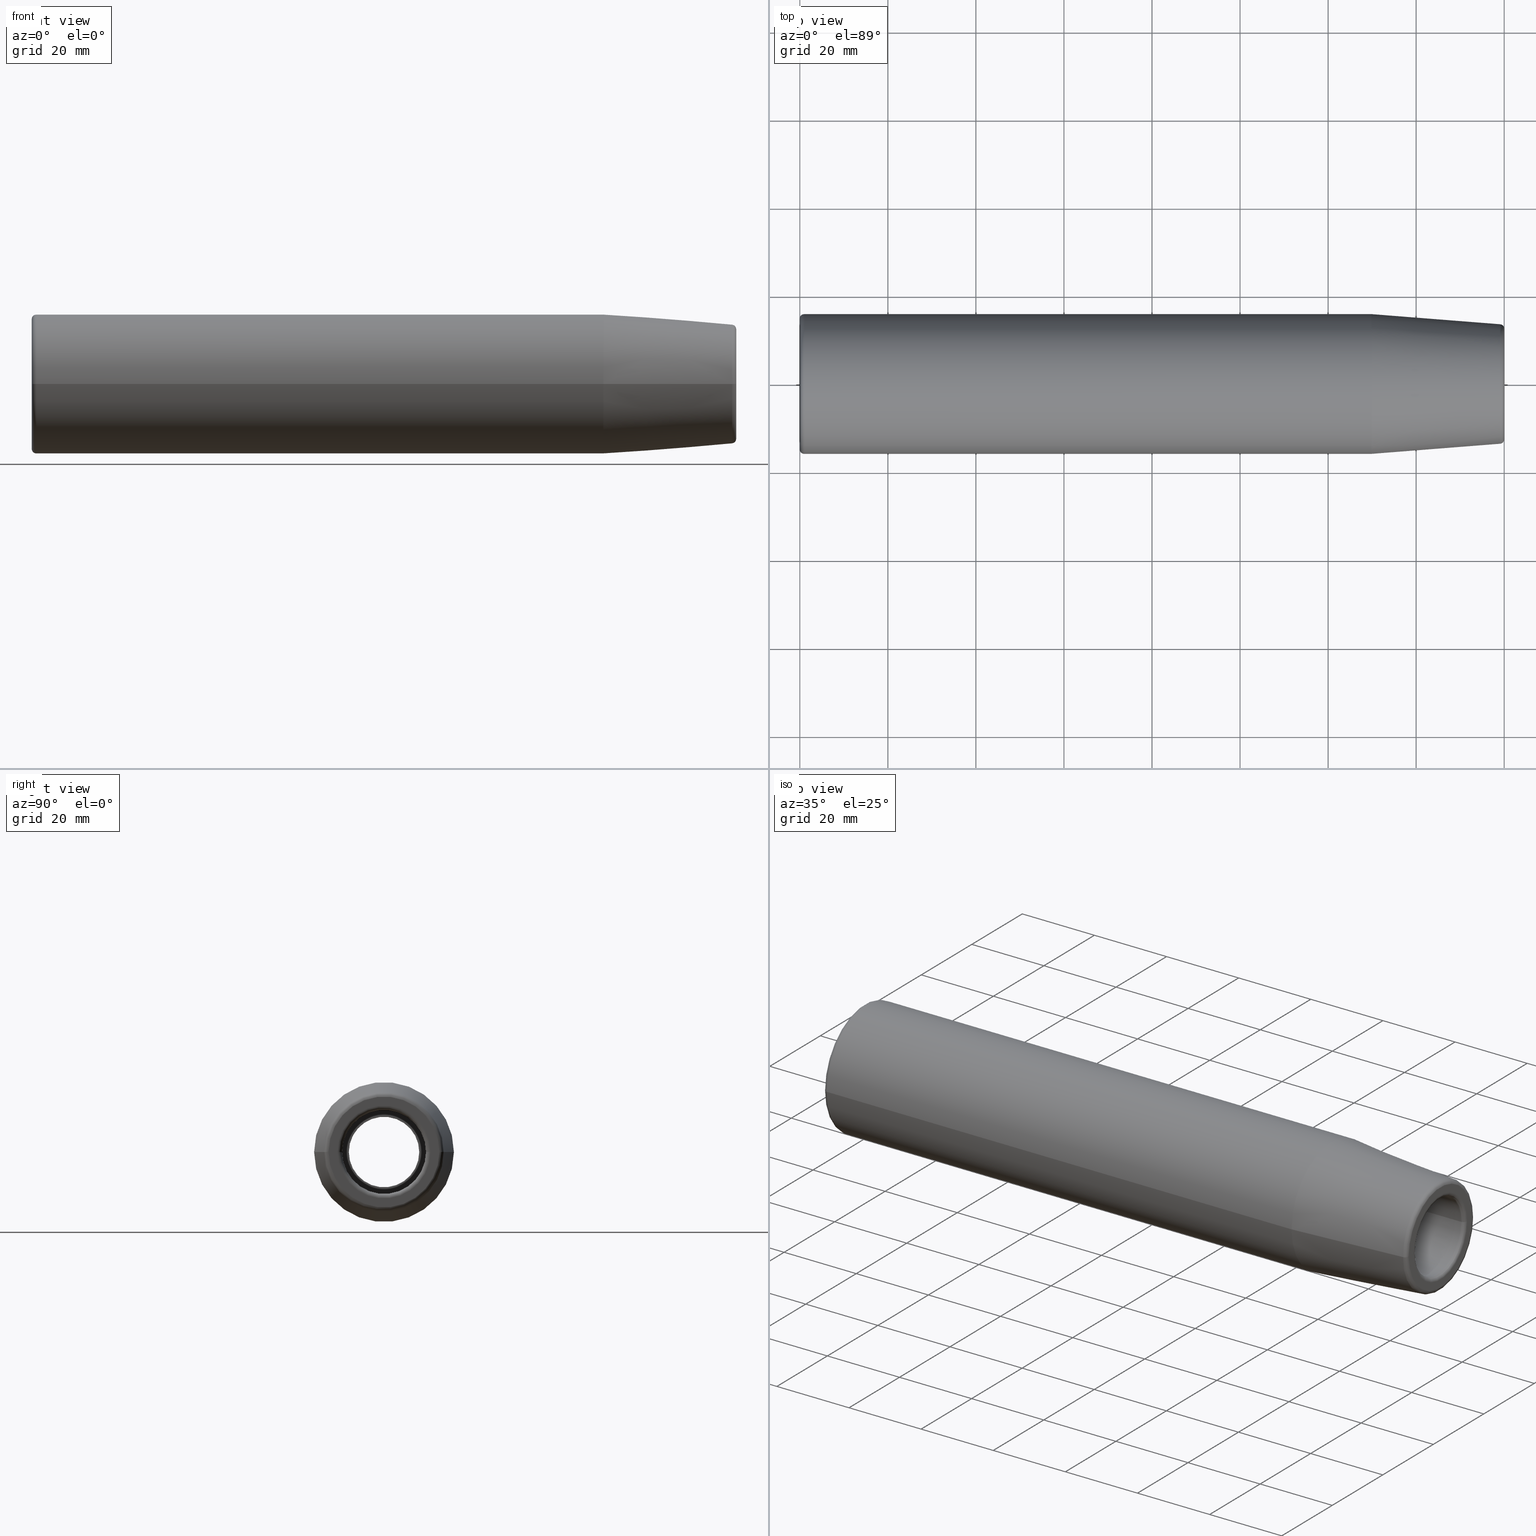
[diagram: canonical four-view strip — front | top / right | iso, engineering-drawing reading convention]
A machine part, canonical four-view strip (front | top / right | iso — engineering-drawing reading convention). The complete STEP part file that produces these views, byte-faithful:
ISO-10303-21;
HEADER;
FILE_DESCRIPTION((''),'2;1');
FILE_NAME('ST31_75-SFH19_05-160','2020-04-27T09:41:28',('eos'),(''),
'CREO PARAMETRIC BY PTC INC, 2018500','CREO PARAMETRIC BY PTC INC, 2018500','');
FILE_SCHEMA(('CONFIG_CONTROL_DESIGN'));
ENDSEC;
DATA;
#2=CARTESIAN_POINT('',(1.E0,0.E0,0.E0));
#3=DIRECTION('',(1.E0,0.E0,0.E0));
#4=DIRECTION('',(0.E0,1.E0,0.E0));
#5=AXIS2_PLACEMENT_3D('',#2,#3,#4);
#7=CARTESIAN_POINT('',(1.E0,1.4875E1,0.E0));
#8=DIRECTION('',(0.E0,0.E0,1.E0));
#9=DIRECTION('',(0.E0,1.E0,0.E0));
#10=AXIS2_PLACEMENT_3D('',#7,#8,#9);
#12=CARTESIAN_POINT('',(1.E0,-1.4875E1,0.E0));
#13=DIRECTION('',(0.E0,0.E0,-1.E0));
#14=DIRECTION('',(0.E0,-1.E0,0.E0));
#15=AXIS2_PLACEMENT_3D('',#12,#13,#14);
#17=CARTESIAN_POINT('',(1.E0,0.E0,0.E0));
#18=DIRECTION('',(-1.E0,0.E0,0.E0));
#19=DIRECTION('',(0.E0,1.E0,0.E0));
#20=AXIS2_PLACEMENT_3D('',#17,#18,#19);
#22=CARTESIAN_POINT('',(0.E0,0.E0,0.E0));
#23=DIRECTION('',(-1.E0,0.E0,0.E0));
#24=DIRECTION('',(0.E0,1.E0,0.E0));
#25=AXIS2_PLACEMENT_3D('',#22,#23,#24);
#27=CARTESIAN_POINT('',(0.E0,0.E0,0.E0));
#28=DIRECTION('',(1.E0,0.E0,0.E0));
#29=DIRECTION('',(0.E0,1.E0,0.E0));
#30=AXIS2_PLACEMENT_3D('',#27,#28,#29);
#32=CARTESIAN_POINT('',(0.E0,0.E0,0.E0));
#33=DIRECTION('',(1.E0,0.E0,0.E0));
#34=DIRECTION('',(0.E0,1.E0,0.E0));
#35=AXIS2_PLACEMENT_3D('',#32,#33,#34);
#37=DIRECTION('',(8.660254037844E-1,-5.000000000002E-1,0.E0));
#38=VECTOR('',#37,1.154700538379E0);
#39=CARTESIAN_POINT('',(0.E0,1.082735026919E1,0.E0));
#40=LINE('',#39,#38);
#41=DIRECTION('',(8.660254037844E-1,5.000000000002E-1,0.E0));
#42=VECTOR('',#41,1.154700538379E0);
#43=CARTESIAN_POINT('',(0.E0,-1.082735026919E1,0.E0));
#44=LINE('',#43,#42);
#45=CARTESIAN_POINT('',(0.E0,0.E0,0.E0));
#46=DIRECTION('',(-1.E0,0.E0,0.E0));
#47=DIRECTION('',(0.E0,1.E0,0.E0));
#48=AXIS2_PLACEMENT_3D('',#45,#46,#47);
#50=DIRECTION('',(1.E0,0.E0,0.E0));
#51=VECTOR('',#50,8.6E1);
#52=CARTESIAN_POINT('',(9.999999999999E-1,1.025E1,0.E0));
#53=LINE('',#52,#51);
#54=DIRECTION('',(1.E0,0.E0,0.E0));
#55=VECTOR('',#54,8.6E1);
#56=CARTESIAN_POINT('',(9.999999999999E-1,-1.025E1,0.E0));
#57=LINE('',#56,#55);
#58=CARTESIAN_POINT('',(9.999999999999E-1,0.E0,0.E0));
#59=DIRECTION('',(-1.E0,0.E0,0.E0));
#60=DIRECTION('',(0.E0,1.E0,0.E0));
#61=AXIS2_PLACEMENT_3D('',#58,#59,#60);
#63=CARTESIAN_POINT('',(9.999999999999E-1,0.E0,0.E0));
#64=DIRECTION('',(1.E0,0.E0,0.E0));
#65=DIRECTION('',(0.E0,1.E0,0.E0));
#66=AXIS2_PLACEMENT_3D('',#63,#64,#65);
#68=CARTESIAN_POINT('',(8.7E1,0.E0,0.E0));
#69=DIRECTION('',(1.E0,0.E0,0.E0));
#70=DIRECTION('',(0.E0,1.E0,0.E0));
#71=AXIS2_PLACEMENT_3D('',#68,#69,#70);
#73=DIRECTION('',(5.000000000005E-1,-8.660254037841E-1,0.E0));
#74=VECTOR('',#73,2.598076211355E0);
#75=CARTESIAN_POINT('',(8.7E1,1.025E1,0.E0));
#76=LINE('',#75,#74);
#77=DIRECTION('',(5.000000000005E-1,8.660254037841E-1,0.E0));
#78=VECTOR('',#77,2.598076211355E0);
#79=CARTESIAN_POINT('',(8.7E1,-1.025E1,0.E0));
#80=LINE('',#79,#78);
#81=CARTESIAN_POINT('',(8.7E1,0.E0,0.E0));
#82=DIRECTION('',(-1.E0,0.E0,0.E0));
#83=DIRECTION('',(0.E0,1.E0,0.E0));
#84=AXIS2_PLACEMENT_3D('',#81,#82,#83);
#86=DIRECTION('',(1.E0,0.E0,0.E0));
#87=VECTOR('',#86,1.865096189432E1);
#88=CARTESIAN_POINT('',(8.829903810568E1,8.E0,0.E0));
#89=LINE('',#88,#87);
#90=DIRECTION('',(1.E0,0.E0,0.E0));
#91=VECTOR('',#90,1.865096189432E1);
#92=CARTESIAN_POINT('',(8.829903810568E1,-8.E0,0.E0));
#93=LINE('',#92,#91);
#94=CARTESIAN_POINT('',(8.829903810568E1,0.E0,0.E0));
#95=DIRECTION('',(-1.E0,0.E0,0.E0));
#96=DIRECTION('',(0.E0,1.E0,0.E0));
#97=AXIS2_PLACEMENT_3D('',#94,#95,#96);
#99=CARTESIAN_POINT('',(8.829903810568E1,0.E0,0.E0));
#100=DIRECTION('',(1.E0,0.E0,0.E0));
#101=DIRECTION('',(0.E0,1.E0,0.E0));
#102=AXIS2_PLACEMENT_3D('',#99,#100,#101);
#104=CARTESIAN_POINT('',(1.0695E2,0.E0,0.E0));
#105=DIRECTION('',(1.E0,0.E0,0.E0));
#106=DIRECTION('',(0.E0,1.E0,0.E0));
#107=AXIS2_PLACEMENT_3D('',#104,#105,#106);
#109=DIRECTION('',(7.071067811873E-1,7.071067811858E-1,0.E0));
#110=VECTOR('',#109,7.071067811858E-2);
#111=CARTESIAN_POINT('',(1.0695E2,8.E0,0.E0));
#112=LINE('',#111,#110);
#113=DIRECTION('',(7.071067811873E-1,-7.071067811858E-1,0.E0));
#114=VECTOR('',#113,7.071067811858E-2);
#115=CARTESIAN_POINT('',(1.0695E2,-8.E0,0.E0));
#116=LINE('',#115,#114);
#117=CARTESIAN_POINT('',(1.0695E2,0.E0,0.E0));
#118=DIRECTION('',(-1.E0,0.E0,0.E0));
#119=DIRECTION('',(0.E0,1.E0,0.E0));
#120=AXIS2_PLACEMENT_3D('',#117,#118,#119);
#122=CARTESIAN_POINT('',(1.07E2,0.E0,0.E0));
#123=DIRECTION('',(-1.E0,0.E0,0.E0));
#124=DIRECTION('',(0.E0,1.E0,0.E0));
#125=AXIS2_PLACEMENT_3D('',#122,#123,#124);
#127=CARTESIAN_POINT('',(1.07E2,0.E0,0.E0));
#128=DIRECTION('',(1.E0,0.E0,0.E0));
#129=DIRECTION('',(0.E0,1.E0,0.E0));
#130=AXIS2_PLACEMENT_3D('',#127,#128,#129);
#132=CARTESIAN_POINT('',(1.07E2,0.E0,0.E0));
#133=DIRECTION('',(1.E0,0.E0,0.E0));
#134=DIRECTION('',(0.E0,1.E0,0.E0));
#135=AXIS2_PLACEMENT_3D('',#132,#133,#134);
#137=DIRECTION('',(1.E0,0.E0,0.E0));
#138=VECTOR('',#137,1.2E1);
#139=CARTESIAN_POINT('',(1.07E2,9.825E0,0.E0));
#140=LINE('',#139,#138);
#141=DIRECTION('',(1.E0,0.E0,0.E0));
#142=VECTOR('',#141,1.2E1);
#143=CARTESIAN_POINT('',(1.07E2,-9.825E0,0.E0));
#144=LINE('',#143,#142);
#145=CARTESIAN_POINT('',(1.07E2,0.E0,0.E0));
#146=DIRECTION('',(-1.E0,0.E0,0.E0));
#147=DIRECTION('',(0.E0,1.E0,0.E0));
#148=AXIS2_PLACEMENT_3D('',#145,#146,#147);
#150=CARTESIAN_POINT('',(1.19E2,0.E0,0.E0));
#151=DIRECTION('',(-1.E0,0.E0,0.E0));
#152=DIRECTION('',(0.E0,1.E0,0.E0));
#153=AXIS2_PLACEMENT_3D('',#150,#151,#152);
#155=CARTESIAN_POINT('',(1.19E2,0.E0,0.E0));
#156=DIRECTION('',(1.E0,0.E0,0.E0));
#157=DIRECTION('',(0.E0,1.E0,0.E0));
#158=AXIS2_PLACEMENT_3D('',#155,#156,#157);
#160=CARTESIAN_POINT('',(1.19E2,0.E0,0.E0));
#161=DIRECTION('',(1.E0,0.E0,0.E0));
#162=DIRECTION('',(0.E0,1.E0,0.E0));
#163=AXIS2_PLACEMENT_3D('',#160,#161,#162);
#165=DIRECTION('',(1.E0,0.E0,0.E0));
#166=VECTOR('',#165,4.E1);
#167=CARTESIAN_POINT('',(1.19E2,9.525E0,0.E0));
#168=LINE('',#167,#166);
#169=DIRECTION('',(1.E0,0.E0,0.E0));
#170=VECTOR('',#169,4.E1);
#171=CARTESIAN_POINT('',(1.19E2,-9.525E0,0.E0));
#172=LINE('',#171,#170);
#173=CARTESIAN_POINT('',(1.19E2,0.E0,0.E0));
#174=DIRECTION('',(-1.E0,0.E0,0.E0));
#175=DIRECTION('',(0.E0,1.E0,0.E0));
#176=AXIS2_PLACEMENT_3D('',#173,#174,#175);
#178=CARTESIAN_POINT('',(1.59E2,1.0525E1,0.E0));
#179=DIRECTION('',(0.E0,0.E0,1.E0));
#180=DIRECTION('',(0.E0,-1.E0,0.E0));
#181=AXIS2_PLACEMENT_3D('',#178,#179,#180);
#183=CARTESIAN_POINT('',(1.59E2,-1.0525E1,0.E0));
#184=DIRECTION('',(0.E0,0.E0,-1.E0));
#185=DIRECTION('',(0.E0,1.E0,0.E0));
#186=AXIS2_PLACEMENT_3D('',#183,#184,#185);
#188=CARTESIAN_POINT('',(1.59E2,0.E0,0.E0));
#189=DIRECTION('',(-1.E0,0.E0,0.E0));
#190=DIRECTION('',(0.E0,1.E0,0.E0));
#191=AXIS2_PLACEMENT_3D('',#188,#189,#190);
#193=CARTESIAN_POINT('',(1.59E2,0.E0,0.E0));
#194=DIRECTION('',(1.E0,0.E0,0.E0));
#195=DIRECTION('',(0.E0,1.E0,0.E0));
#196=AXIS2_PLACEMENT_3D('',#193,#194,#195);
#198=CARTESIAN_POINT('',(1.592588190451E2,0.E0,0.E0));
#199=DIRECTION('',(1.E0,0.E0,0.E0));
#200=DIRECTION('',(0.E0,1.E0,0.E0));
#201=AXIS2_PLACEMENT_3D('',#198,#199,#200);
#203=DIRECTION('',(8.660254037841E-1,5.000000000005E-1,0.E0));
#204=VECTOR('',#203,5.176380902048E-1);
#205=CARTESIAN_POINT('',(1.592588190451E2,9.559074173711E0,0.E0));
#206=LINE('',#205,#204);
#207=DIRECTION('',(8.660254037841E-1,-5.000000000005E-1,0.E0));
#208=VECTOR('',#207,5.176380902048E-1);
#209=CARTESIAN_POINT('',(1.592588190451E2,-9.559074173711E0,0.E0));
#210=LINE('',#209,#208);
#211=CARTESIAN_POINT('',(1.592588190451E2,0.E0,0.E0));
#212=DIRECTION('',(-1.E0,0.E0,0.E0));
#213=DIRECTION('',(0.E0,1.E0,0.E0));
#214=AXIS2_PLACEMENT_3D('',#211,#212,#213);
#216=CARTESIAN_POINT('',(1.59E2,1.0525E1,0.E0));
#217=DIRECTION('',(0.E0,0.E0,1.E0));
#218=DIRECTION('',(7.071067811868E-1,-7.071067811863E-1,0.E0));
#219=AXIS2_PLACEMENT_3D('',#216,#217,#218);
#221=CARTESIAN_POINT('',(1.59E2,-1.0525E1,0.E0));
#222=DIRECTION('',(0.E0,0.E0,-1.E0));
#223=DIRECTION('',(7.071067811868E-1,7.071067811863E-1,0.E0));
#224=AXIS2_PLACEMENT_3D('',#221,#222,#223);
#226=CARTESIAN_POINT('',(1.597071067812E2,0.E0,0.E0));
#227=DIRECTION('',(-1.E0,0.E0,0.E0));
#228=DIRECTION('',(0.E0,1.E0,0.E0));
#229=AXIS2_PLACEMENT_3D('',#226,#227,#228);
#231=CARTESIAN_POINT('',(1.597071067812E2,0.E0,0.E0));
#232=DIRECTION('',(1.E0,0.E0,0.E0));
#233=DIRECTION('',(0.E0,1.E0,0.E0));
#234=AXIS2_PLACEMENT_3D('',#231,#232,#233);
#236=CARTESIAN_POINT('',(1.6E2,0.E0,0.E0));
#237=DIRECTION('',(-1.E0,0.E0,0.E0));
#238=DIRECTION('',(0.E0,1.E0,0.E0));
#239=AXIS2_PLACEMENT_3D('',#236,#237,#238);
#241=CARTESIAN_POINT('',(1.6E2,0.E0,0.E0));
#242=DIRECTION('',(1.E0,0.E0,0.E0));
#243=DIRECTION('',(0.E0,1.E0,0.E0));
#244=AXIS2_PLACEMENT_3D('',#241,#242,#243);
#246=CARTESIAN_POINT('',(1.6E2,0.E0,0.E0));
#247=DIRECTION('',(1.E0,0.E0,0.E0));
#248=DIRECTION('',(0.E0,1.E0,0.E0));
#249=AXIS2_PLACEMENT_3D('',#246,#247,#248);
#251=CARTESIAN_POINT('',(1.59E2,1.257560950834E1,0.E0));
#252=DIRECTION('',(0.E0,0.E0,1.E0));
#253=DIRECTION('',(1.E0,0.E0,0.E0));
#254=AXIS2_PLACEMENT_3D('',#251,#252,#253);
#256=CARTESIAN_POINT('',(1.59E2,-1.257560950834E1,0.E0));
#257=DIRECTION('',(0.E0,0.E0,-1.E0));
#258=DIRECTION('',(1.E0,0.E0,0.E0));
#259=AXIS2_PLACEMENT_3D('',#256,#257,#258);
#261=CARTESIAN_POINT('',(1.6E2,0.E0,0.E0));
#262=DIRECTION('',(-1.E0,0.E0,0.E0));
#263=DIRECTION('',(0.E0,1.E0,0.E0));
#264=AXIS2_PLACEMENT_3D('',#261,#262,#263);
#266=DIRECTION('',(-9.969173337331E-1,7.845909572785E-2,0.E0));
#267=VECTOR('',#266,2.934615976090E1);
#268=CARTESIAN_POINT('',(1.590784590957E2,1.357252684208E1,0.E0));
#269=LINE('',#268,#267);
#270=DIRECTION('',(-9.969173337331E-1,-7.845909572785E-2,0.E0));
#271=VECTOR('',#270,2.934615976090E1);
#272=CARTESIAN_POINT('',(1.590784590957E2,-1.357252684208E1,0.E0));
#273=LINE('',#272,#271);
#274=CARTESIAN_POINT('',(1.590784590957E2,0.E0,0.E0));
#275=DIRECTION('',(-1.E0,0.E0,0.E0));
#276=DIRECTION('',(0.E0,1.E0,0.E0));
#277=AXIS2_PLACEMENT_3D('',#274,#275,#276);
#279=CARTESIAN_POINT('',(1.590784590957E2,0.E0,0.E0));
#280=DIRECTION('',(1.E0,0.E0,0.E0));
#281=DIRECTION('',(0.E0,1.E0,0.E0));
#282=AXIS2_PLACEMENT_3D('',#279,#280,#281);
#284=CARTESIAN_POINT('',(1.298227637516E2,0.E0,0.E0));
#285=DIRECTION('',(1.E0,0.E0,0.E0));
#286=DIRECTION('',(0.E0,1.E0,0.E0));
#287=AXIS2_PLACEMENT_3D('',#284,#285,#286);
#289=DIRECTION('',(-1.E0,0.E0,0.E0));
#290=VECTOR('',#289,1.288227637516E2);
#291=CARTESIAN_POINT('',(1.298227637516E2,1.5875E1,0.E0));
#292=LINE('',#291,#290);
#293=DIRECTION('',(-1.E0,0.E0,0.E0));
#294=VECTOR('',#293,1.288227637516E2);
#295=CARTESIAN_POINT('',(1.298227637516E2,-1.5875E1,0.E0));
#296=LINE('',#295,#294);
#297=CARTESIAN_POINT('',(1.298227637516E2,0.E0,0.E0));
#298=DIRECTION('',(-1.E0,0.E0,0.E0));
#299=DIRECTION('',(0.E0,1.E0,0.E0));
#300=AXIS2_PLACEMENT_3D('',#297,#298,#299);
#302=CARTESIAN_POINT('',(1.E0,1.5875E1,0.E0));
#303=CARTESIAN_POINT('',(0.E0,1.4875E1,0.E0));
#304=VERTEX_POINT('',#302);
#305=VERTEX_POINT('',#303);
#306=CARTESIAN_POINT('',(0.E0,1.082735026919E1,0.E0));
#307=CARTESIAN_POINT('',(9.999999999999E-1,1.025E1,0.E0));
#308=VERTEX_POINT('',#306);
#309=VERTEX_POINT('',#307);
#310=CARTESIAN_POINT('',(8.7E1,1.025E1,0.E0));
#311=VERTEX_POINT('',#310);
#312=CARTESIAN_POINT('',(8.829903810568E1,8.E0,0.E0));
#313=VERTEX_POINT('',#312);
#314=CARTESIAN_POINT('',(1.0695E2,8.E0,0.E0));
#315=VERTEX_POINT('',#314);
#316=CARTESIAN_POINT('',(1.07E2,8.05E0,0.E0));
#317=VERTEX_POINT('',#316);
#318=CARTESIAN_POINT('',(1.07E2,9.825E0,0.E0));
#319=CARTESIAN_POINT('',(1.19E2,9.825E0,0.E0));
#320=VERTEX_POINT('',#318);
#321=VERTEX_POINT('',#319);
#322=CARTESIAN_POINT('',(1.19E2,9.525E0,0.E0));
#323=CARTESIAN_POINT('',(1.59E2,9.525E0,0.E0));
#324=VERTEX_POINT('',#322);
#325=VERTEX_POINT('',#323);
#326=CARTESIAN_POINT('',(1.592588190451E2,9.559074173711E0,0.E0));
#327=VERTEX_POINT('',#326);
#328=CARTESIAN_POINT('',(1.597071067812E2,9.817893218814E0,0.E0));
#329=VERTEX_POINT('',#328);
#330=CARTESIAN_POINT('',(1.6E2,1.0525E1,0.E0));
#331=VERTEX_POINT('',#330);
#332=CARTESIAN_POINT('',(1.6E2,1.257560950834E1,0.E0));
#333=CARTESIAN_POINT('',(1.590784590957E2,1.357252684208E1,0.E0));
#334=VERTEX_POINT('',#332);
#335=VERTEX_POINT('',#333);
#336=CARTESIAN_POINT('',(1.298227637516E2,1.5875E1,0.E0));
#337=VERTEX_POINT('',#336);
#338=CARTESIAN_POINT('',(1.E0,-1.5875E1,0.E0));
#339=CARTESIAN_POINT('',(0.E0,-1.4875E1,0.E0));
#340=VERTEX_POINT('',#338);
#341=VERTEX_POINT('',#339);
#342=CARTESIAN_POINT('',(0.E0,-1.082735026919E1,0.E0));
#343=CARTESIAN_POINT('',(9.999999999999E-1,-1.025E1,0.E0));
#344=VERTEX_POINT('',#342);
#345=VERTEX_POINT('',#343);
#346=CARTESIAN_POINT('',(8.7E1,-1.025E1,0.E0));
#347=VERTEX_POINT('',#346);
#348=CARTESIAN_POINT('',(8.829903810568E1,-8.E0,0.E0));
#349=VERTEX_POINT('',#348);
#350=CARTESIAN_POINT('',(1.0695E2,-8.E0,0.E0));
#351=VERTEX_POINT('',#350);
#352=CARTESIAN_POINT('',(1.07E2,-8.05E0,0.E0));
#353=VERTEX_POINT('',#352);
#354=CARTESIAN_POINT('',(1.07E2,-9.825E0,0.E0));
#355=CARTESIAN_POINT('',(1.19E2,-9.825E0,0.E0));
#356=VERTEX_POINT('',#354);
#357=VERTEX_POINT('',#355);
#358=CARTESIAN_POINT('',(1.19E2,-9.525E0,0.E0));
#359=CARTESIAN_POINT('',(1.59E2,-9.525E0,0.E0));
#360=VERTEX_POINT('',#358);
#361=VERTEX_POINT('',#359);
#362=CARTESIAN_POINT('',(1.592588190451E2,-9.559074173711E0,0.E0));
#363=VERTEX_POINT('',#362);
#364=CARTESIAN_POINT('',(1.597071067812E2,-9.817893218814E0,0.E0));
#365=VERTEX_POINT('',#364);
#366=CARTESIAN_POINT('',(1.6E2,-1.0525E1,0.E0));
#367=VERTEX_POINT('',#366);
#368=CARTESIAN_POINT('',(1.6E2,-1.257560950834E1,0.E0));
#369=CARTESIAN_POINT('',(1.590784590957E2,-1.357252684208E1,0.E0));
#370=VERTEX_POINT('',#368);
#371=VERTEX_POINT('',#369);
#372=CARTESIAN_POINT('',(1.298227637516E2,-1.5875E1,0.E0));
#373=VERTEX_POINT('',#372);
#374=CARTESIAN_POINT('',(1.E0,0.E0,0.E0));
#375=DIRECTION('',(1.E0,0.E0,0.E0));
#376=DIRECTION('',(0.E0,-1.E0,0.E0));
#377=AXIS2_PLACEMENT_3D('',#374,#375,#376);
#378=TOROIDAL_SURFACE('',#377,1.4875E1,1.E0);
#380=ORIENTED_EDGE('',*,*,#379,.F.);
#382=ORIENTED_EDGE('',*,*,#381,.T.);
#384=ORIENTED_EDGE('',*,*,#383,.T.);
#386=ORIENTED_EDGE('',*,*,#385,.F.);
#387=EDGE_LOOP('',(#380,#382,#384,#386));
#388=FACE_OUTER_BOUND('',#387,.F.);
#389=ADVANCED_FACE('',(#388),#378,.T.);
#390=CARTESIAN_POINT('',(1.E0,0.E0,0.E0));
#391=DIRECTION('',(1.E0,0.E0,0.E0));
#392=DIRECTION('',(0.E0,-1.E0,0.E0));
#393=AXIS2_PLACEMENT_3D('',#390,#391,#392);
#394=TOROIDAL_SURFACE('',#393,1.4875E1,1.E0);
#395=ORIENTED_EDGE('',*,*,#379,.T.);
#397=ORIENTED_EDGE('',*,*,#396,.T.);
#398=ORIENTED_EDGE('',*,*,#383,.F.);
#400=ORIENTED_EDGE('',*,*,#399,.F.);
#401=EDGE_LOOP('',(#395,#397,#398,#400));
#402=FACE_OUTER_BOUND('',#401,.F.);
#403=ADVANCED_FACE('',(#402),#394,.T.);
#404=CARTESIAN_POINT('',(0.E0,0.E0,0.E0));
#405=DIRECTION('',(1.E0,0.E0,0.E0));
#406=DIRECTION('',(0.E0,-1.E0,0.E0));
#407=AXIS2_PLACEMENT_3D('',#404,#405,#406);
#408=PLANE('',#407);
#409=ORIENTED_EDGE('',*,*,#396,.F.);
#410=ORIENTED_EDGE('',*,*,#385,.T.);
#411=EDGE_LOOP('',(#409,#410));
#412=FACE_OUTER_BOUND('',#411,.F.);
#414=ORIENTED_EDGE('',*,*,#413,.F.);
#416=ORIENTED_EDGE('',*,*,#415,.T.);
#417=EDGE_LOOP('',(#414,#416));
#418=FACE_BOUND('',#417,.F.);
#419=ADVANCED_FACE('',(#412,#418),#408,.F.);
#420=CARTESIAN_POINT('',(4.999999999999E-1,0.E0,0.E0));
#421=DIRECTION('',(-1.E0,0.E0,0.E0));
#422=DIRECTION('',(0.E0,1.E0,0.E0));
#423=AXIS2_PLACEMENT_3D('',#420,#421,#422);
#424=CONICAL_SURFACE('',#423,1.053867513460E1,3.000000000001E1);
#426=ORIENTED_EDGE('',*,*,#425,.F.);
#427=ORIENTED_EDGE('',*,*,#413,.T.);
#429=ORIENTED_EDGE('',*,*,#428,.T.);
#431=ORIENTED_EDGE('',*,*,#430,.F.);
#432=EDGE_LOOP('',(#426,#427,#429,#431));
#433=FACE_OUTER_BOUND('',#432,.F.);
#434=ADVANCED_FACE('',(#433),#424,.F.);
#435=CARTESIAN_POINT('',(4.999999999999E-1,0.E0,0.E0));
#436=DIRECTION('',(-1.E0,0.E0,0.E0));
#437=DIRECTION('',(0.E0,1.E0,0.E0));
#438=AXIS2_PLACEMENT_3D('',#435,#436,#437);
#439=CONICAL_SURFACE('',#438,1.053867513460E1,3.000000000001E1);
#440=ORIENTED_EDGE('',*,*,#425,.T.);
#442=ORIENTED_EDGE('',*,*,#441,.T.);
#443=ORIENTED_EDGE('',*,*,#428,.F.);
#444=ORIENTED_EDGE('',*,*,#415,.F.);
#445=EDGE_LOOP('',(#440,#442,#443,#444));
#446=FACE_OUTER_BOUND('',#445,.F.);
#447=ADVANCED_FACE('',(#446),#439,.F.);
#448=CARTESIAN_POINT('',(-8.E0,0.E0,0.E0));
#449=DIRECTION('',(1.E0,0.E0,0.E0));
#450=DIRECTION('',(0.E0,-1.E0,0.E0));
#451=AXIS2_PLACEMENT_3D('',#448,#449,#450);
#452=CYLINDRICAL_SURFACE('',#451,1.025E1);
#454=ORIENTED_EDGE('',*,*,#453,.T.);
#456=ORIENTED_EDGE('',*,*,#455,.T.);
#458=ORIENTED_EDGE('',*,*,#457,.F.);
#459=ORIENTED_EDGE('',*,*,#441,.F.);
#460=EDGE_LOOP('',(#454,#456,#458,#459));
#461=FACE_OUTER_BOUND('',#460,.F.);
#462=ADVANCED_FACE('',(#461),#452,.F.);
#463=CARTESIAN_POINT('',(-8.E0,0.E0,0.E0));
#464=DIRECTION('',(1.E0,0.E0,0.E0));
#465=DIRECTION('',(0.E0,-1.E0,0.E0));
#466=AXIS2_PLACEMENT_3D('',#463,#464,#465);
#467=CYLINDRICAL_SURFACE('',#466,1.025E1);
#468=ORIENTED_EDGE('',*,*,#453,.F.);
#469=ORIENTED_EDGE('',*,*,#430,.T.);
#470=ORIENTED_EDGE('',*,*,#457,.T.);
#472=ORIENTED_EDGE('',*,*,#471,.F.);
#473=EDGE_LOOP('',(#468,#469,#470,#472));
#474=FACE_OUTER_BOUND('',#473,.F.);
#475=ADVANCED_FACE('',(#474),#467,.F.);
#476=CARTESIAN_POINT('',(8.764951905284E1,0.E0,0.E0));
#477=DIRECTION('',(-1.E0,0.E0,0.E0));
#478=DIRECTION('',(0.E0,1.E0,0.E0));
#479=AXIS2_PLACEMENT_3D('',#476,#477,#478);
#480=CONICAL_SURFACE('',#479,9.125E0,5.999999999997E1);
#482=ORIENTED_EDGE('',*,*,#481,.F.);
#483=ORIENTED_EDGE('',*,*,#471,.T.);
#485=ORIENTED_EDGE('',*,*,#484,.T.);
#487=ORIENTED_EDGE('',*,*,#486,.F.);
#488=EDGE_LOOP('',(#482,#483,#485,#487));
#489=FACE_OUTER_BOUND('',#488,.F.);
#490=ADVANCED_FACE('',(#489),#480,.F.);
#491=CARTESIAN_POINT('',(8.764951905284E1,0.E0,0.E0));
#492=DIRECTION('',(-1.E0,0.E0,0.E0));
#493=DIRECTION('',(0.E0,1.E0,0.E0));
#494=AXIS2_PLACEMENT_3D('',#491,#492,#493);
#495=CONICAL_SURFACE('',#494,9.125E0,5.999999999997E1);
#496=ORIENTED_EDGE('',*,*,#481,.T.);
#498=ORIENTED_EDGE('',*,*,#497,.T.);
#499=ORIENTED_EDGE('',*,*,#484,.F.);
#500=ORIENTED_EDGE('',*,*,#455,.F.);
#501=EDGE_LOOP('',(#496,#498,#499,#500));
#502=FACE_OUTER_BOUND('',#501,.F.);
#503=ADVANCED_FACE('',(#502),#495,.F.);
#504=CARTESIAN_POINT('',(-8.E0,0.E0,0.E0));
#505=DIRECTION('',(1.E0,0.E0,0.E0));
#506=DIRECTION('',(0.E0,-1.E0,0.E0));
#507=AXIS2_PLACEMENT_3D('',#504,#505,#506);
#508=CYLINDRICAL_SURFACE('',#507,8.E0);
#510=ORIENTED_EDGE('',*,*,#509,.T.);
#512=ORIENTED_EDGE('',*,*,#511,.T.);
#514=ORIENTED_EDGE('',*,*,#513,.F.);
#515=ORIENTED_EDGE('',*,*,#497,.F.);
#516=EDGE_LOOP('',(#510,#512,#514,#515));
#517=FACE_OUTER_BOUND('',#516,.F.);
#518=ADVANCED_FACE('',(#517),#508,.F.);
#519=CARTESIAN_POINT('',(-8.E0,0.E0,0.E0));
#520=DIRECTION('',(1.E0,0.E0,0.E0));
#521=DIRECTION('',(0.E0,-1.E0,0.E0));
#522=AXIS2_PLACEMENT_3D('',#519,#520,#521);
#523=CYLINDRICAL_SURFACE('',#522,8.E0);
#524=ORIENTED_EDGE('',*,*,#509,.F.);
#525=ORIENTED_EDGE('',*,*,#486,.T.);
#526=ORIENTED_EDGE('',*,*,#513,.T.);
#528=ORIENTED_EDGE('',*,*,#527,.F.);
#529=EDGE_LOOP('',(#524,#525,#526,#528));
#530=FACE_OUTER_BOUND('',#529,.F.);
#531=ADVANCED_FACE('',(#530),#523,.F.);
#532=CARTESIAN_POINT('',(1.06975E2,0.E0,0.E0));
#533=DIRECTION('',(1.E0,0.E0,0.E0));
#534=DIRECTION('',(0.E0,-1.E0,0.E0));
#535=AXIS2_PLACEMENT_3D('',#532,#533,#534);
#536=CONICAL_SURFACE('',#535,8.025E0,4.499999999995E1);
#538=ORIENTED_EDGE('',*,*,#537,.F.);
#539=ORIENTED_EDGE('',*,*,#527,.T.);
#541=ORIENTED_EDGE('',*,*,#540,.T.);
#543=ORIENTED_EDGE('',*,*,#542,.F.);
#544=EDGE_LOOP('',(#538,#539,#541,#543));
#545=FACE_OUTER_BOUND('',#544,.F.);
#546=ADVANCED_FACE('',(#545),#536,.F.);
#547=CARTESIAN_POINT('',(1.06975E2,0.E0,0.E0));
#548=DIRECTION('',(1.E0,0.E0,0.E0));
#549=DIRECTION('',(0.E0,-1.E0,0.E0));
#550=AXIS2_PLACEMENT_3D('',#547,#548,#549);
#551=CONICAL_SURFACE('',#550,8.025E0,4.499999999995E1);
#552=ORIENTED_EDGE('',*,*,#537,.T.);
#554=ORIENTED_EDGE('',*,*,#553,.T.);
#555=ORIENTED_EDGE('',*,*,#540,.F.);
#556=ORIENTED_EDGE('',*,*,#511,.F.);
#557=EDGE_LOOP('',(#552,#554,#555,#556));
#558=FACE_OUTER_BOUND('',#557,.F.);
#559=ADVANCED_FACE('',(#558),#551,.F.);
#560=CARTESIAN_POINT('',(1.07E2,0.E0,0.E0));
#561=DIRECTION('',(1.E0,0.E0,0.E0));
#562=DIRECTION('',(0.E0,-1.E0,0.E0));
#563=AXIS2_PLACEMENT_3D('',#560,#561,#562);
#564=PLANE('',#563);
#566=ORIENTED_EDGE('',*,*,#565,.F.);
#568=ORIENTED_EDGE('',*,*,#567,.T.);
#569=EDGE_LOOP('',(#566,#568));
#570=FACE_OUTER_BOUND('',#569,.F.);
#571=ORIENTED_EDGE('',*,*,#553,.F.);
#572=ORIENTED_EDGE('',*,*,#542,.T.);
#573=EDGE_LOOP('',(#571,#572));
#574=FACE_BOUND('',#573,.F.);
#575=ADVANCED_FACE('',(#570,#574),#564,.T.);
#576=CARTESIAN_POINT('',(-8.E0,0.E0,0.E0));
#577=DIRECTION('',(1.E0,0.E0,0.E0));
#578=DIRECTION('',(0.E0,-1.E0,0.E0));
#579=AXIS2_PLACEMENT_3D('',#576,#577,#578);
#580=CYLINDRICAL_SURFACE('',#579,9.825E0);
#582=ORIENTED_EDGE('',*,*,#581,.F.);
#583=ORIENTED_EDGE('',*,*,#565,.T.);
#585=ORIENTED_EDGE('',*,*,#584,.T.);
#587=ORIENTED_EDGE('',*,*,#586,.F.);
#588=EDGE_LOOP('',(#582,#583,#585,#587));
#589=FACE_OUTER_BOUND('',#588,.F.);
#590=ADVANCED_FACE('',(#589),#580,.F.);
#591=CARTESIAN_POINT('',(-8.E0,0.E0,0.E0));
#592=DIRECTION('',(1.E0,0.E0,0.E0));
#593=DIRECTION('',(0.E0,-1.E0,0.E0));
#594=AXIS2_PLACEMENT_3D('',#591,#592,#593);
#595=CYLINDRICAL_SURFACE('',#594,9.825E0);
#596=ORIENTED_EDGE('',*,*,#581,.T.);
#598=ORIENTED_EDGE('',*,*,#597,.T.);
#599=ORIENTED_EDGE('',*,*,#584,.F.);
#600=ORIENTED_EDGE('',*,*,#567,.F.);
#601=EDGE_LOOP('',(#596,#598,#599,#600));
#602=FACE_OUTER_BOUND('',#601,.F.);
#603=ADVANCED_FACE('',(#602),#595,.F.);
#604=CARTESIAN_POINT('',(1.19E2,0.E0,0.E0));
#605=DIRECTION('',(1.E0,0.E0,0.E0));
#606=DIRECTION('',(0.E0,-1.E0,0.E0));
#607=AXIS2_PLACEMENT_3D('',#604,#605,#606);
#608=PLANE('',#607);
#609=ORIENTED_EDGE('',*,*,#597,.F.);
#610=ORIENTED_EDGE('',*,*,#586,.T.);
#611=EDGE_LOOP('',(#609,#610));
#612=FACE_OUTER_BOUND('',#611,.F.);
#614=ORIENTED_EDGE('',*,*,#613,.F.);
#616=ORIENTED_EDGE('',*,*,#615,.T.);
#617=EDGE_LOOP('',(#614,#616));
#618=FACE_BOUND('',#617,.F.);
#619=ADVANCED_FACE('',(#612,#618),#608,.F.);
#620=CARTESIAN_POINT('',(-8.E0,0.E0,0.E0));
#621=DIRECTION('',(1.E0,0.E0,0.E0));
#622=DIRECTION('',(0.E0,-1.E0,0.E0));
#623=AXIS2_PLACEMENT_3D('',#620,#621,#622);
#624=CYLINDRICAL_SURFACE('',#623,9.525E0);
#626=ORIENTED_EDGE('',*,*,#625,.F.);
#627=ORIENTED_EDGE('',*,*,#613,.T.);
#629=ORIENTED_EDGE('',*,*,#628,.T.);
#631=ORIENTED_EDGE('',*,*,#630,.F.);
#632=EDGE_LOOP('',(#626,#627,#629,#631));
#633=FACE_OUTER_BOUND('',#632,.F.);
#634=ADVANCED_FACE('',(#633),#624,.F.);
#635=CARTESIAN_POINT('',(-8.E0,0.E0,0.E0));
#636=DIRECTION('',(1.E0,0.E0,0.E0));
#637=DIRECTION('',(0.E0,-1.E0,0.E0));
#638=AXIS2_PLACEMENT_3D('',#635,#636,#637);
#639=CYLINDRICAL_SURFACE('',#638,9.525E0);
#640=ORIENTED_EDGE('',*,*,#625,.T.);
#642=ORIENTED_EDGE('',*,*,#641,.T.);
#643=ORIENTED_EDGE('',*,*,#628,.F.);
#644=ORIENTED_EDGE('',*,*,#615,.F.);
#645=EDGE_LOOP('',(#640,#642,#643,#644));
#646=FACE_OUTER_BOUND('',#645,.F.);
#647=ADVANCED_FACE('',(#646),#639,.F.);
#648=CARTESIAN_POINT('',(1.59E2,0.E0,0.E0));
#649=DIRECTION('',(1.E0,0.E0,0.E0));
#650=DIRECTION('',(0.E0,-1.E0,0.E0));
#651=AXIS2_PLACEMENT_3D('',#648,#649,#650);
#652=TOROIDAL_SURFACE('',#651,1.0525E1,1.E0);
#654=ORIENTED_EDGE('',*,*,#653,.T.);
#656=ORIENTED_EDGE('',*,*,#655,.T.);
#658=ORIENTED_EDGE('',*,*,#657,.F.);
#659=ORIENTED_EDGE('',*,*,#641,.F.);
#660=EDGE_LOOP('',(#654,#656,#658,#659));
#661=FACE_OUTER_BOUND('',#660,.F.);
#662=ADVANCED_FACE('',(#661),#652,.T.);
#663=CARTESIAN_POINT('',(1.59E2,0.E0,0.E0));
#664=DIRECTION('',(1.E0,0.E0,0.E0));
#665=DIRECTION('',(0.E0,-1.E0,0.E0));
#666=AXIS2_PLACEMENT_3D('',#663,#664,#665);
#667=TOROIDAL_SURFACE('',#666,1.0525E1,1.E0);
#668=ORIENTED_EDGE('',*,*,#653,.F.);
#669=ORIENTED_EDGE('',*,*,#630,.T.);
#670=ORIENTED_EDGE('',*,*,#657,.T.);
#672=ORIENTED_EDGE('',*,*,#671,.F.);
#673=EDGE_LOOP('',(#668,#669,#670,#672));
#674=FACE_OUTER_BOUND('',#673,.F.);
#675=ADVANCED_FACE('',(#674),#667,.T.);
#676=CARTESIAN_POINT('',(1.594829629131E2,0.E0,0.E0));
#677=DIRECTION('',(1.E0,0.E0,0.E0));
#678=DIRECTION('',(0.E0,-1.E0,0.E0));
#679=AXIS2_PLACEMENT_3D('',#676,#677,#678);
#680=CONICAL_SURFACE('',#679,9.688483696262E0,3.000000000003E1);
#682=ORIENTED_EDGE('',*,*,#681,.F.);
#683=ORIENTED_EDGE('',*,*,#671,.T.);
#685=ORIENTED_EDGE('',*,*,#684,.T.);
#687=ORIENTED_EDGE('',*,*,#686,.F.);
#688=EDGE_LOOP('',(#682,#683,#685,#687));
#689=FACE_OUTER_BOUND('',#688,.F.);
#690=ADVANCED_FACE('',(#689),#680,.F.);
#691=CARTESIAN_POINT('',(1.594829629131E2,0.E0,0.E0));
#692=DIRECTION('',(1.E0,0.E0,0.E0));
#693=DIRECTION('',(0.E0,-1.E0,0.E0));
#694=AXIS2_PLACEMENT_3D('',#691,#692,#693);
#695=CONICAL_SURFACE('',#694,9.688483696262E0,3.000000000003E1);
#696=ORIENTED_EDGE('',*,*,#681,.T.);
#698=ORIENTED_EDGE('',*,*,#697,.T.);
#699=ORIENTED_EDGE('',*,*,#684,.F.);
#700=ORIENTED_EDGE('',*,*,#655,.F.);
#701=EDGE_LOOP('',(#696,#698,#699,#700));
#702=FACE_OUTER_BOUND('',#701,.F.);
#703=ADVANCED_FACE('',(#702),#695,.F.);
#704=CARTESIAN_POINT('',(1.59E2,0.E0,0.E0));
#705=DIRECTION('',(1.E0,0.E0,0.E0));
#706=DIRECTION('',(0.E0,-1.E0,0.E0));
#707=AXIS2_PLACEMENT_3D('',#704,#705,#706);
#708=TOROIDAL_SURFACE('',#707,1.0525E1,1.E0);
#710=ORIENTED_EDGE('',*,*,#709,.T.);
#712=ORIENTED_EDGE('',*,*,#711,.T.);
#714=ORIENTED_EDGE('',*,*,#713,.F.);
#715=ORIENTED_EDGE('',*,*,#697,.F.);
#716=EDGE_LOOP('',(#710,#712,#714,#715));
#717=FACE_OUTER_BOUND('',#716,.F.);
#718=ADVANCED_FACE('',(#717),#708,.T.);
#719=CARTESIAN_POINT('',(1.59E2,0.E0,0.E0));
#720=DIRECTION('',(1.E0,0.E0,0.E0));
#721=DIRECTION('',(0.E0,-1.E0,0.E0));
#722=AXIS2_PLACEMENT_3D('',#719,#720,#721);
#723=TOROIDAL_SURFACE('',#722,1.0525E1,1.E0);
#724=ORIENTED_EDGE('',*,*,#709,.F.);
#725=ORIENTED_EDGE('',*,*,#686,.T.);
#726=ORIENTED_EDGE('',*,*,#713,.T.);
#728=ORIENTED_EDGE('',*,*,#727,.F.);
#729=EDGE_LOOP('',(#724,#725,#726,#728));
#730=FACE_OUTER_BOUND('',#729,.F.);
#731=ADVANCED_FACE('',(#730),#723,.T.);
#732=CARTESIAN_POINT('',(1.6E2,0.E0,0.E0));
#733=DIRECTION('',(1.E0,0.E0,0.E0));
#734=DIRECTION('',(0.E0,-1.E0,0.E0));
#735=AXIS2_PLACEMENT_3D('',#732,#733,#734);
#736=PLANE('',#735);
#738=ORIENTED_EDGE('',*,*,#737,.F.);
#740=ORIENTED_EDGE('',*,*,#739,.T.);
#741=EDGE_LOOP('',(#738,#740));
#742=FACE_OUTER_BOUND('',#741,.F.);
#743=ORIENTED_EDGE('',*,*,#711,.F.);
#744=ORIENTED_EDGE('',*,*,#727,.T.);
#745=EDGE_LOOP('',(#743,#744));
#746=FACE_BOUND('',#745,.F.);
#747=ADVANCED_FACE('',(#742,#746),#736,.T.);
#748=CARTESIAN_POINT('',(1.59E2,0.E0,0.E0));
#749=DIRECTION('',(1.E0,0.E0,0.E0));
#750=DIRECTION('',(0.E0,-1.E0,0.E0));
#751=AXIS2_PLACEMENT_3D('',#748,#749,#750);
#752=TOROIDAL_SURFACE('',#751,1.257560950834E1,1.E0);
#754=ORIENTED_EDGE('',*,*,#753,.F.);
#755=ORIENTED_EDGE('',*,*,#737,.T.);
#757=ORIENTED_EDGE('',*,*,#756,.T.);
#759=ORIENTED_EDGE('',*,*,#758,.F.);
#760=EDGE_LOOP('',(#754,#755,#757,#759));
#761=FACE_OUTER_BOUND('',#760,.F.);
#762=ADVANCED_FACE('',(#761),#752,.T.);
#763=CARTESIAN_POINT('',(1.59E2,0.E0,0.E0));
#764=DIRECTION('',(1.E0,0.E0,0.E0));
#765=DIRECTION('',(0.E0,-1.E0,0.E0));
#766=AXIS2_PLACEMENT_3D('',#763,#764,#765);
#767=TOROIDAL_SURFACE('',#766,1.257560950834E1,1.E0);
#768=ORIENTED_EDGE('',*,*,#753,.T.);
#770=ORIENTED_EDGE('',*,*,#769,.T.);
#771=ORIENTED_EDGE('',*,*,#756,.F.);
#772=ORIENTED_EDGE('',*,*,#739,.F.);
#773=EDGE_LOOP('',(#768,#770,#771,#772));
#774=FACE_OUTER_BOUND('',#773,.F.);
#775=ADVANCED_FACE('',(#774),#767,.T.);
#776=CARTESIAN_POINT('',(1.444506114237E2,0.E0,0.E0));
#777=DIRECTION('',(-1.E0,0.E0,0.E0));
#778=DIRECTION('',(0.E0,1.E0,0.E0));
#779=AXIS2_PLACEMENT_3D('',#776,#777,#778);
#780=CONICAL_SURFACE('',#779,1.472376342104E1,4.5E0);
#782=ORIENTED_EDGE('',*,*,#781,.T.);
#784=ORIENTED_EDGE('',*,*,#783,.T.);
#786=ORIENTED_EDGE('',*,*,#785,.F.);
#787=ORIENTED_EDGE('',*,*,#769,.F.);
#788=EDGE_LOOP('',(#782,#784,#786,#787));
#789=FACE_OUTER_BOUND('',#788,.F.);
#790=ADVANCED_FACE('',(#789),#780,.T.);
#791=CARTESIAN_POINT('',(1.444506114237E2,0.E0,0.E0));
#792=DIRECTION('',(-1.E0,0.E0,0.E0));
#793=DIRECTION('',(0.E0,1.E0,0.E0));
#794=AXIS2_PLACEMENT_3D('',#791,#792,#793);
#795=CONICAL_SURFACE('',#794,1.472376342104E1,4.5E0);
#796=ORIENTED_EDGE('',*,*,#781,.F.);
#797=ORIENTED_EDGE('',*,*,#758,.T.);
#798=ORIENTED_EDGE('',*,*,#785,.T.);
#800=ORIENTED_EDGE('',*,*,#799,.F.);
#801=EDGE_LOOP('',(#796,#797,#798,#800));
#802=FACE_OUTER_BOUND('',#801,.F.);
#803=ADVANCED_FACE('',(#802),#795,.T.);
#804=CARTESIAN_POINT('',(-8.E0,0.E0,0.E0));
#805=DIRECTION('',(1.E0,0.E0,0.E0));
#806=DIRECTION('',(0.E0,-1.E0,0.E0));
#807=AXIS2_PLACEMENT_3D('',#804,#805,#806);
#808=CYLINDRICAL_SURFACE('',#807,1.5875E1);
#810=ORIENTED_EDGE('',*,*,#809,.F.);
#811=ORIENTED_EDGE('',*,*,#799,.T.);
#813=ORIENTED_EDGE('',*,*,#812,.T.);
#814=ORIENTED_EDGE('',*,*,#381,.F.);
#815=EDGE_LOOP('',(#810,#811,#813,#814));
#816=FACE_OUTER_BOUND('',#815,.F.);
#817=ADVANCED_FACE('',(#816),#808,.T.);
#818=CARTESIAN_POINT('',(-8.E0,0.E0,0.E0));
#819=DIRECTION('',(1.E0,0.E0,0.E0));
#820=DIRECTION('',(0.E0,-1.E0,0.E0));
#821=AXIS2_PLACEMENT_3D('',#818,#819,#820);
#822=CYLINDRICAL_SURFACE('',#821,1.5875E1);
#823=ORIENTED_EDGE('',*,*,#809,.T.);
#824=ORIENTED_EDGE('',*,*,#399,.T.);
#825=ORIENTED_EDGE('',*,*,#812,.F.);
#826=ORIENTED_EDGE('',*,*,#783,.F.);
#827=EDGE_LOOP('',(#823,#824,#825,#826));
#828=FACE_OUTER_BOUND('',#827,.F.);
#829=ADVANCED_FACE('',(#828),#822,.T.);
#830=CLOSED_SHELL('',(#389,#403,#419,#434,#447,#462,#475,#490,#503,#518,#531,
#546,#559,#575,#590,#603,#619,#634,#647,#662,#675,#690,#703,#718,#731,#747,#762,
#775,#790,#803,#817,#829));
#831=MANIFOLD_SOLID_BREP('',#830);
#833=DIMENSIONAL_EXPONENTS(0.E0,0.E0,0.E0,0.E0,0.E0,0.E0,0.E0);
#835=PLANE_ANGLE_MEASURE_WITH_UNIT(PLANE_ANGLE_MEASURE(1.745329251994E-2),#834);
#836=(CONVERSION_BASED_UNIT('DEGREE',#835)NAMED_UNIT(*)PLANE_ANGLE_UNIT());
#838=UNCERTAINTY_MEASURE_WITH_UNIT(LENGTH_MEASURE(1.767074345740E-2),#832,
'closure',
'Maximum model space distance between geometric entities at asserted connectivities');
#839=(GEOMETRIC_REPRESENTATION_CONTEXT(3)GLOBAL_UNCERTAINTY_ASSIGNED_CONTEXT((
#838))GLOBAL_UNIT_ASSIGNED_CONTEXT((#832,#836,#837))REPRESENTATION_CONTEXT
('ID1','3'));
#841=APPLICATION_CONTEXT(
'CONFIGURATION CONTROLLED 3D DESIGNS OF MECHANICAL PARTS AND ASSEMBLIES');
#842=APPLICATION_PROTOCOL_DEFINITION('international standard',
'config_control_design',1994,#841);
#843=DESIGN_CONTEXT('',#841,'design');
#844=MECHANICAL_CONTEXT('',#841,'mechanical');
#845=PRODUCT('ST31_75-SFH19_05-160','ST31_75-SFH19_05-160','NOT SPECIFIED',
(#844));
#846=PRODUCT_DEFINITION_FORMATION_WITH_SPECIFIED_SOURCE('1','LAST_VERSION',#845,
.MADE.);
#850=PRODUCT_CATEGORY('part','');
#851=PRODUCT_RELATED_PRODUCT_CATEGORY('detail','',(#845));
#852=PRODUCT_CATEGORY_RELATIONSHIP('','',#850,#851);
#853=SECURITY_CLASSIFICATION_LEVEL('unclassified');
#854=SECURITY_CLASSIFICATION('','',#853);
#855=CC_DESIGN_SECURITY_CLASSIFICATION(#854,(#846));
#856=APPROVAL_STATUS('approved');
#857=APPROVAL(#856,'');
#858=CC_DESIGN_APPROVAL(#857,(#854,#846,#847));
#859=CALENDAR_DATE(120,27,4);
#860=COORDINATED_UNIVERSAL_TIME_OFFSET(9,0,.AHEAD.);
#861=LOCAL_TIME(9,41,2.8E1,#860);
#862=DATE_AND_TIME(#859,#861);
#863=APPROVAL_DATE_TIME(#862,#857);
#864=DATE_TIME_ROLE('creation_date');
#865=CC_DESIGN_DATE_AND_TIME_ASSIGNMENT(#862,#864,(#847));
#866=DATE_TIME_ROLE('classification_date');
#867=CC_DESIGN_DATE_AND_TIME_ASSIGNMENT(#862,#866,(#854));
#868=PERSON('UNSPECIFIED','UNSPECIFIED',$,$,$,$);
#869=ORGANIZATION('UNSPECIFIED','UNSPECIFIED','UNSPECIFIED');
#870=PERSON_AND_ORGANIZATION(#868,#869);
#871=APPROVAL_ROLE('approver');
#872=APPROVAL_PERSON_ORGANIZATION(#870,#857,#871);
#873=PERSON_AND_ORGANIZATION_ROLE('creator');
#874=CC_DESIGN_PERSON_AND_ORGANIZATION_ASSIGNMENT(#870,#873,(#846,#847));
#875=PERSON_AND_ORGANIZATION_ROLE('design_supplier');
#876=CC_DESIGN_PERSON_AND_ORGANIZATION_ASSIGNMENT(#870,#875,(#846));
#877=PERSON_AND_ORGANIZATION_ROLE('classification_officer');
#878=CC_DESIGN_PERSON_AND_ORGANIZATION_ASSIGNMENT(#870,#877,(#854));
#879=PERSON_AND_ORGANIZATION_ROLE('design_owner');
#880=CC_DESIGN_PERSON_AND_ORGANIZATION_ASSIGNMENT(#870,#879,(#845));
#6=CIRCLE('',#5,1.5875E1);
#11=CIRCLE('',#10,1.E0);
#16=CIRCLE('',#15,1.E0);
#21=CIRCLE('',#20,1.5875E1);
#26=CIRCLE('',#25,1.4875E1);
#31=CIRCLE('',#30,1.4875E1);
#36=CIRCLE('',#35,1.082735026919E1);
#49=CIRCLE('',#48,1.082735026919E1);
#62=CIRCLE('',#61,1.025E1);
#67=CIRCLE('',#66,1.025E1);
#72=CIRCLE('',#71,1.025E1);
#85=CIRCLE('',#84,1.025E1);
#98=CIRCLE('',#97,8.E0);
#103=CIRCLE('',#102,8.E0);
#108=CIRCLE('',#107,8.E0);
#121=CIRCLE('',#120,8.E0);
#126=CIRCLE('',#125,8.05E0);
#131=CIRCLE('',#130,8.05E0);
#136=CIRCLE('',#135,9.825E0);
#149=CIRCLE('',#148,9.825E0);
#154=CIRCLE('',#153,9.825E0);
#159=CIRCLE('',#158,9.825E0);
#164=CIRCLE('',#163,9.525E0);
#177=CIRCLE('',#176,9.525E0);
#182=CIRCLE('',#181,1.E0);
#187=CIRCLE('',#186,1.E0);
#192=CIRCLE('',#191,9.525E0);
#197=CIRCLE('',#196,9.525E0);
#202=CIRCLE('',#201,9.559074173711E0);
#215=CIRCLE('',#214,9.559074173711E0);
#220=CIRCLE('',#219,1.E0);
#225=CIRCLE('',#224,1.E0);
#230=CIRCLE('',#229,9.817893218814E0);
#235=CIRCLE('',#234,9.817893218814E0);
#240=CIRCLE('',#239,1.0525E1);
#245=CIRCLE('',#244,1.0525E1);
#250=CIRCLE('',#249,1.257560950834E1);
#255=CIRCLE('',#254,1.E0);
#260=CIRCLE('',#259,1.E0);
#265=CIRCLE('',#264,1.257560950834E1);
#278=CIRCLE('',#277,1.357252684208E1);
#283=CIRCLE('',#282,1.357252684208E1);
#288=CIRCLE('',#287,1.5875E1);
#301=CIRCLE('',#300,1.5875E1);
#379=EDGE_CURVE('',#304,#305,#11,.T.);
#381=EDGE_CURVE('',#304,#340,#6,.T.);
#383=EDGE_CURVE('',#340,#341,#16,.T.);
#385=EDGE_CURVE('',#305,#341,#31,.T.);
#396=EDGE_CURVE('',#305,#341,#26,.T.);
#399=EDGE_CURVE('',#304,#340,#21,.T.);
#413=EDGE_CURVE('',#308,#344,#36,.T.);
#415=EDGE_CURVE('',#308,#344,#49,.T.);
#425=EDGE_CURVE('',#308,#309,#40,.T.);
#428=EDGE_CURVE('',#344,#345,#44,.T.);
#430=EDGE_CURVE('',#309,#345,#67,.T.);
#441=EDGE_CURVE('',#309,#345,#62,.T.);
#453=EDGE_CURVE('',#309,#311,#53,.T.);
#455=EDGE_CURVE('',#311,#347,#85,.T.);
#457=EDGE_CURVE('',#345,#347,#57,.T.);
#471=EDGE_CURVE('',#311,#347,#72,.T.);
#481=EDGE_CURVE('',#311,#313,#76,.T.);
#484=EDGE_CURVE('',#347,#349,#80,.T.);
#486=EDGE_CURVE('',#313,#349,#103,.T.);
#497=EDGE_CURVE('',#313,#349,#98,.T.);
#509=EDGE_CURVE('',#313,#315,#89,.T.);
#511=EDGE_CURVE('',#315,#351,#121,.T.);
#513=EDGE_CURVE('',#349,#351,#93,.T.);
#527=EDGE_CURVE('',#315,#351,#108,.T.);
#537=EDGE_CURVE('',#315,#317,#112,.T.);
#540=EDGE_CURVE('',#351,#353,#116,.T.);
#542=EDGE_CURVE('',#317,#353,#131,.T.);
#553=EDGE_CURVE('',#317,#353,#126,.T.);
#565=EDGE_CURVE('',#320,#356,#136,.T.);
#567=EDGE_CURVE('',#320,#356,#149,.T.);
#581=EDGE_CURVE('',#320,#321,#140,.T.);
#584=EDGE_CURVE('',#356,#357,#144,.T.);
#586=EDGE_CURVE('',#321,#357,#159,.T.);
#597=EDGE_CURVE('',#321,#357,#154,.T.);
#613=EDGE_CURVE('',#324,#360,#164,.T.);
#615=EDGE_CURVE('',#324,#360,#177,.T.);
#625=EDGE_CURVE('',#324,#325,#168,.T.);
#628=EDGE_CURVE('',#360,#361,#172,.T.);
#630=EDGE_CURVE('',#325,#361,#197,.T.);
#641=EDGE_CURVE('',#325,#361,#192,.T.);
#653=EDGE_CURVE('',#325,#327,#182,.T.);
#655=EDGE_CURVE('',#327,#363,#215,.T.);
#657=EDGE_CURVE('',#361,#363,#187,.T.);
#671=EDGE_CURVE('',#327,#363,#202,.T.);
#681=EDGE_CURVE('',#327,#329,#206,.T.);
#684=EDGE_CURVE('',#363,#365,#210,.T.);
#686=EDGE_CURVE('',#329,#365,#235,.T.);
#697=EDGE_CURVE('',#329,#365,#230,.T.);
#709=EDGE_CURVE('',#329,#331,#220,.T.);
#711=EDGE_CURVE('',#331,#367,#240,.T.);
#713=EDGE_CURVE('',#365,#367,#225,.T.);
#727=EDGE_CURVE('',#331,#367,#245,.T.);
#737=EDGE_CURVE('',#334,#370,#250,.T.);
#739=EDGE_CURVE('',#334,#370,#265,.T.);
#753=EDGE_CURVE('',#334,#335,#255,.T.);
#756=EDGE_CURVE('',#370,#371,#260,.T.);
#758=EDGE_CURVE('',#335,#371,#283,.T.);
#769=EDGE_CURVE('',#335,#371,#278,.T.);
#781=EDGE_CURVE('',#335,#337,#269,.T.);
#783=EDGE_CURVE('',#337,#373,#301,.T.);
#785=EDGE_CURVE('',#371,#373,#273,.T.);
#799=EDGE_CURVE('',#337,#373,#288,.T.);
#809=EDGE_CURVE('',#337,#304,#292,.T.);
#812=EDGE_CURVE('',#373,#340,#296,.T.);
#832=(LENGTH_UNIT()NAMED_UNIT(*)SI_UNIT(.MILLI.,.METRE.));
#834=(NAMED_UNIT(*)PLANE_ANGLE_UNIT()SI_UNIT($,.RADIAN.));
#837=(NAMED_UNIT(*)SI_UNIT($,.STERADIAN.)SOLID_ANGLE_UNIT());
#840=ADVANCED_BREP_SHAPE_REPRESENTATION('',(#831),#839);
#847=PRODUCT_DEFINITION('design','',#846,#843);
#848=PRODUCT_DEFINITION_SHAPE('','SHAPE FOR ST31_75-SFH19_05-160.',#847);
#849=SHAPE_DEFINITION_REPRESENTATION(#848,#840);
ENDSEC;
END-ISO-10303-21;
